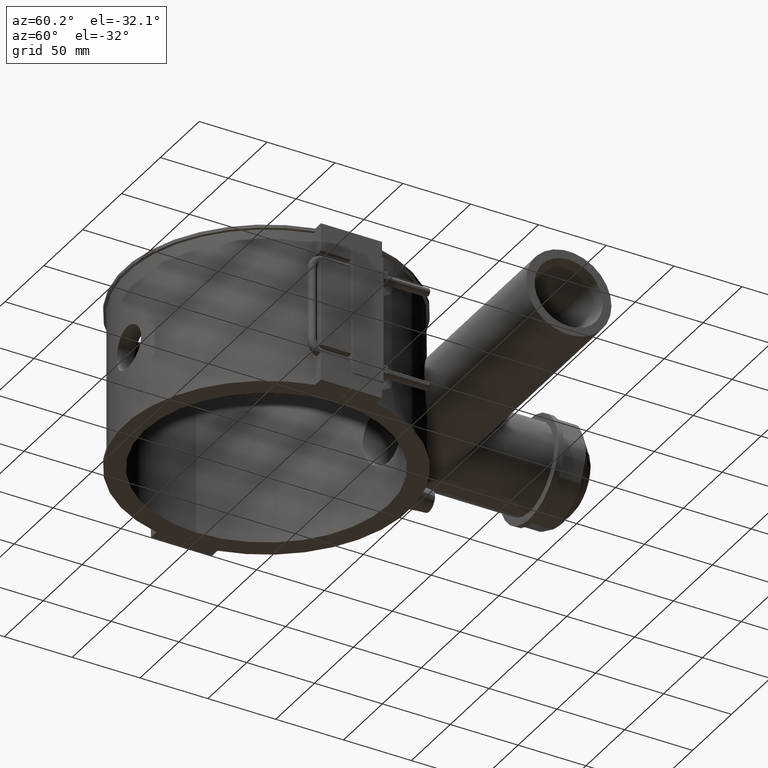
[diagram: clean part render]
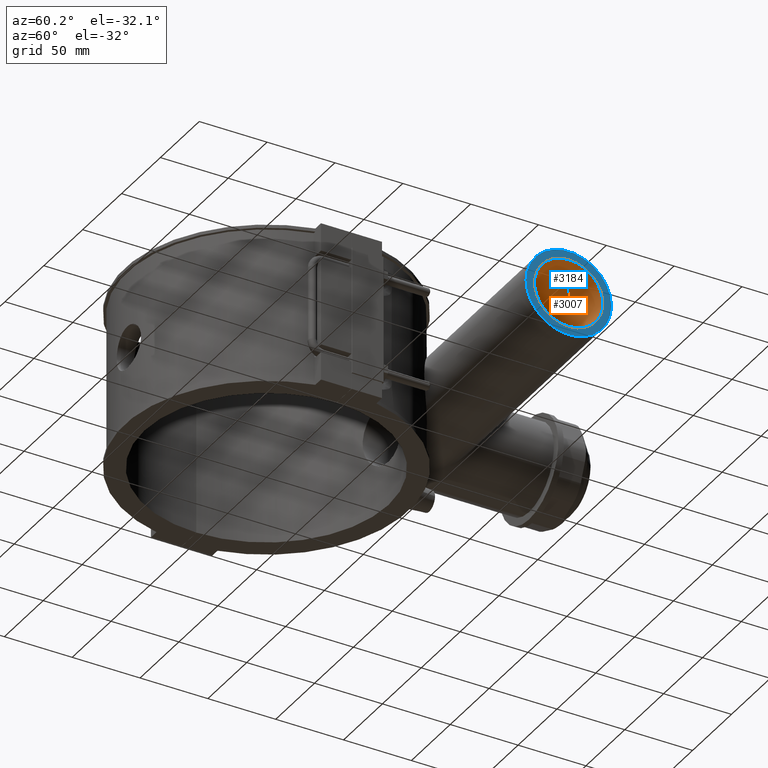
[diagram: same view with the hole feature highlighted: cylindrical wall and planar end face, labeled with their STEP entity ids]
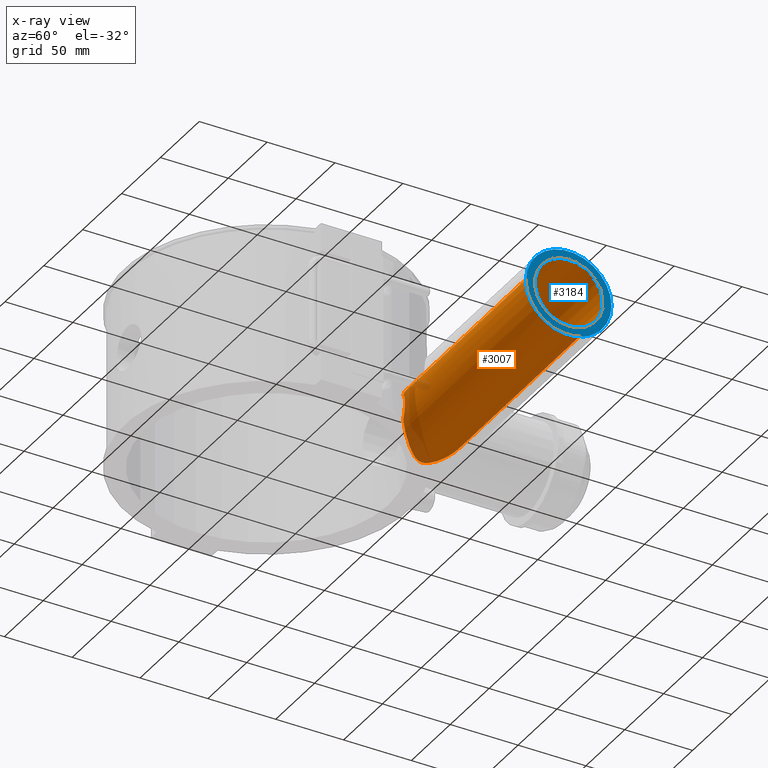
[diagram: x-ray of the same camera — body ghosted, the hole faces saturated]
A machine part, auxiliary view. The highlighted faces form one hole feature of diameter 50.4 mm: the cylindrical wall (entity #3007, orange) and its adjacent planar end face (entity #3184, blue) — they share a circular edge in the B-rep.
The next image is the same camera in x-ray (body ghosted, the hole faces saturated) — the bore reads through the body.
Wall:
#708=FACE_BOUND('',#1044,.T.);
#758=CIRCLE('',#3191,25.2);
#862=FACE_OUTER_BOUND('',#1043,.T.);
#1043=EDGE_LOOP('',(#2062,#2063));
#1044=EDGE_LOOP('',(#2064));
#1274=B_SPLINE_CURVE_WITH_KNOTS('',3,(#4312,#4313,#4314,#4315,#4316,#4317,
#4318,#4319,#4320,#4321,#4322,#4323,#4324,#4325,#4326,#4327,#4328,#4329,
#4330,#4331,#4332,#4333,#4334,#4335,#4336,#4337,#4338,#4339,#4340,#4341,
#4342,#4343,#4344,#4345,#4346,#4347,#4348,#4349,#4350,#4351,#4352,#4353,
#4354,#4355,#4356,#4357,#4358,#4359,#4360,#4361,#4362,#4363,#4364,#4365,
#4366,#4367,#4368,#4369,#4370,#4371,#4372,#4373,#4374,#4375,#4376,#4377,
#4378,#4379,#4380,#4381,#4382),.UNSPECIFIED.,.F.,.F.,(4,2,2,2,2,2,2,2,2,
2,2,2,2,2,2,2,2,2,2,2,2,2,2,2,2,2,3,2,2,2,2,2,2,2,4),(5.34224310128821,
5.44303072689351,5.95850318548576,6.47397564407801,7.06152463791301,7.649073631748,
8.236622625583,8.5303971225005,8.824171619418,9.1179461163355,9.411720613253,
9.99926960708799,10.586818600923,11.174367594758,11.6898400533502,12.2053125119425,
12.7207849705347,13.236257429127,13.7517298877193,14.2672023463115,14.7826748049038,
15.298147263496,15.885696257331,16.473245251166,17.060794245001,17.3545687419185,
17.648343238836,17.9421177357535,18.235892232671,18.823441226506,19.410990220341,
19.998539214176,20.5140116727683,21.0294841313605,21.1302717569658),
 .UNSPECIFIED.);
#1275=B_SPLINE_CURVE_WITH_KNOTS('',3,(#4383,#4384,#4385,#4386,#4387,#4388,
#4389,#4390,#4391,#4392,#4393,#4394,#4395,#4396),.UNSPECIFIED.,.F.,.F.,
(4,2,2,2,2,2,4),(3.50576226862094,3.85768770114975,4.22259452400955,4.58750134686935,
4.95240816972915,5.31731499258895,5.66924042511776),.UNSPECIFIED.);
#1329=VERTEX_POINT('',#4310);
#1330=VERTEX_POINT('',#4311);
#1331=VERTEX_POINT('',#4397);
#1623=EDGE_CURVE('',#1329,#1330,#1274,.T.);
#1624=EDGE_CURVE('',#1329,#1330,#1275,.T.);
#1625=EDGE_CURVE('',#1331,#1331,#758,.T.);
#2062=ORIENTED_EDGE('',*,*,#1623,.T.);
#2063=ORIENTED_EDGE('',*,*,#1624,.F.);
#2064=ORIENTED_EDGE('',*,*,#1625,.T.);
#2960=CYLINDRICAL_SURFACE('',#3190,25.2);
#3007=ADVANCED_FACE('',(#862,#708),#2960,.F.);
#3190=AXIS2_PLACEMENT_3D('',#4309,#3471,#3472);
#3191=AXIS2_PLACEMENT_3D('',#4398,#3473,#3474);
#3471=DIRECTION('center_axis',(1.,0.,0.));
#3472=DIRECTION('ref_axis',(0.,1.,0.));
#3473=DIRECTION('center_axis',(1.,0.,0.));
#3474=DIRECTION('ref_axis',(0.,0.,-1.));
#4309=CARTESIAN_POINT('Origin',(98.5,110.,0.));
#4310=CARTESIAN_POINT('',(24.8432944405324,86.5032411031001,9.10726750133984));
#4311=CARTESIAN_POINT('',(24.8432944405323,86.5032411031001,-9.10726750133987));
#4312=CARTESIAN_POINT('Ctrl Pts',(24.8432944405333,86.5032411031003,9.1072675013401));
#4313=CARTESIAN_POINT('Ctrl Pts',(24.7301088292559,86.6229130748703,9.41602130339801));
#4314=CARTESIAN_POINT('Ctrl Pts',(24.6116695464456,86.7482359630691,9.72128580400996));
#4315=CARTESIAN_POINT('Ctrl Pts',(23.8573563509172,87.5471532975309,11.5642854536495));
#4316=CARTESIAN_POINT('Ctrl Pts',(23.0944076516088,88.3582053195659,13.0076883636228));
#4317=CARTESIAN_POINT('Ctrl Pts',(21.4110720469216,90.1644355167131,15.6242636621071));
#4318=CARTESIAN_POINT('Ctrl Pts',(20.4909400727046,91.1594980794726,16.7976798512746));
#4319=CARTESIAN_POINT('Ctrl Pts',(18.4998747213541,93.3451401330086,18.9833219048106));
#4320=CARTESIAN_POINT('Ctrl Pts',(17.3479813825215,94.6272767510981,20.0347976944913));
#4321=CARTESIAN_POINT('Ctrl Pts',(14.9924524336935,97.3452856310784,21.8534195101001));
#4322=CARTESIAN_POINT('Ctrl Pts',(13.7875797948489,98.7797323401865,22.6210933244879));
#4323=CARTESIAN_POINT('Ctrl Pts',(11.5109422054728,101.735688747228,23.8602059753298));
#4324=CARTESIAN_POINT('Ctrl Pts',(10.4421810056752,103.238532256103,24.3296486012527));
#4325=CARTESIAN_POINT('Ctrl Pts',(9.16108469727634,105.609578009364,24.827730850256));
#4326=CARTESIAN_POINT('Ctrl Pts',(8.7901386682555,106.418436128618,24.9589332259209));
#4327=CARTESIAN_POINT('Ctrl Pts',(8.24366285866406,108.124092436878,25.1447193908453));
#4328=CARTESIAN_POINT('Ctrl Pts',(8.0679365391653,109.020751676942,25.2));
#4329=CARTESIAN_POINT('Ctrl Pts',(8.06793653916529,110.979248323058,25.2));
#4330=CARTESIAN_POINT('Ctrl Pts',(8.24366285866405,111.875907563122,25.1447193908453));
#4331=CARTESIAN_POINT('Ctrl Pts',(8.79013866825549,113.581563871382,24.9589332259209));
#4332=CARTESIAN_POINT('Ctrl Pts',(9.16108469727632,114.390421990636,24.827730850256));
#4333=CARTESIAN_POINT('Ctrl Pts',(10.4421810056752,116.761467743897,24.3296486012528));
#4334=CARTESIAN_POINT('Ctrl Pts',(11.5109422054728,118.264311252772,23.8602059753298));
#4335=CARTESIAN_POINT('Ctrl Pts',(13.7875797948489,121.220267659813,22.621093324488));
#4336=CARTESIAN_POINT('Ctrl Pts',(14.9924524336935,122.654714368922,21.8534195101001));
#4337=CARTESIAN_POINT('Ctrl Pts',(17.3479813825214,125.372723248902,20.0347976944913));
#4338=CARTESIAN_POINT('Ctrl Pts',(18.499874721354,126.654859866991,18.9833219048107));
#4339=CARTESIAN_POINT('Ctrl Pts',(20.4909400727046,128.840501920527,16.7976798512746));
#4340=CARTESIAN_POINT('Ctrl Pts',(21.4110720469216,129.835564483287,15.6242636621071));
#4341=CARTESIAN_POINT('Ctrl Pts',(23.0944076516088,131.641794680434,13.0076883636228));
#4342=CARTESIAN_POINT('Ctrl Pts',(23.8573563509172,132.452846702469,11.5642854536496));
#4343=CARTESIAN_POINT('Ctrl Pts',(25.1192510847094,133.789359947987,8.48112110487815));
#4344=CARTESIAN_POINT('Ctrl Pts',(25.619361597918,134.316087497329,6.83745143271416));
#4345=CARTESIAN_POINT('Ctrl Pts',(26.2898838592351,135.021559020629,3.4560725541925));
#4346=CARTESIAN_POINT('Ctrl Pts',(26.46,135.2,1.71824152864085));
#4347=CARTESIAN_POINT('Ctrl Pts',(26.46,135.2,-1.71824152864084));
#4348=CARTESIAN_POINT('Ctrl Pts',(26.2898838592351,135.021559020629,-3.45607255419249));
#4349=CARTESIAN_POINT('Ctrl Pts',(25.619361597918,134.316087497329,-6.83745143271415));
#4350=CARTESIAN_POINT('Ctrl Pts',(25.1192510847094,133.789359947987,-8.48112110487815));
#4351=CARTESIAN_POINT('Ctrl Pts',(23.8573563509172,132.452846702469,-11.5642854536495));
#4352=CARTESIAN_POINT('Ctrl Pts',(23.0944076516088,131.641794680434,-13.0076883636228));
#4353=CARTESIAN_POINT('Ctrl Pts',(21.4110720469215,129.835564483287,-15.6242636621071));
#4354=CARTESIAN_POINT('Ctrl Pts',(20.4909400727046,128.840501920527,-16.7976798512746));
#4355=CARTESIAN_POINT('Ctrl Pts',(18.499874721354,126.654859866991,-18.9833219048107));
#4356=CARTESIAN_POINT('Ctrl Pts',(17.3479813825214,125.372723248902,-20.0347976944913));
#4357=CARTESIAN_POINT('Ctrl Pts',(14.9924524336934,122.654714368922,-21.8534195101001));
#4358=CARTESIAN_POINT('Ctrl Pts',(13.7875797948488,121.220267659813,-22.6210933244879));
#4359=CARTESIAN_POINT('Ctrl Pts',(11.5109422054727,118.264311252772,-23.8602059753298));
#4360=CARTESIAN_POINT('Ctrl Pts',(10.4421810056751,116.761467743897,-24.3296486012527));
#4361=CARTESIAN_POINT('Ctrl Pts',(9.16108469727617,114.390421990636,-24.827730850256));
#4362=CARTESIAN_POINT('Ctrl Pts',(8.79013866825534,113.581563871382,-24.9589332259209));
#4363=CARTESIAN_POINT('Ctrl Pts',(8.24366285866387,111.875907563122,-25.1447193908453));
#4364=CARTESIAN_POINT('Ctrl Pts',(8.0679365391651,110.979248323058,-25.2));
#4365=CARTESIAN_POINT('Ctrl Pts',(8.0679365391651,110.,-25.2));
#4366=CARTESIAN_POINT('Ctrl Pts',(8.0679365391651,109.020751676942,-25.2));
#4367=CARTESIAN_POINT('Ctrl Pts',(8.24366285866387,108.124092436878,-25.1447193908453));
#4368=CARTESIAN_POINT('Ctrl Pts',(8.79013866825534,106.418436128618,-24.9589332259209));
#4369=CARTESIAN_POINT('Ctrl Pts',(9.16108469727616,105.609578009364,-24.8277308502561));
#4370=CARTESIAN_POINT('Ctrl Pts',(10.442181005675,103.238532256103,-24.3296486012528));
#4371=CARTESIAN_POINT('Ctrl Pts',(11.5109422054727,101.735688747228,-23.8602059753298));
#4372=CARTESIAN_POINT('Ctrl Pts',(13.7875797948488,98.7797323401866,-22.621093324488));
#4373=CARTESIAN_POINT('Ctrl Pts',(14.9924524336934,97.3452856310785,-21.8534195101001));
#4374=CARTESIAN_POINT('Ctrl Pts',(17.3479813825214,94.6272767510982,-20.0347976944913));
#4375=CARTESIAN_POINT('Ctrl Pts',(18.499874721354,93.3451401330086,-18.9833219048106));
#4376=CARTESIAN_POINT('Ctrl Pts',(20.4909400727046,91.1594980794726,-16.7976798512746));
#4377=CARTESIAN_POINT('Ctrl Pts',(21.4110720469215,90.1644355167131,-15.6242636621071));
#4378=CARTESIAN_POINT('Ctrl Pts',(23.0944076516088,88.3582053195659,-13.0076883636228));
#4379=CARTESIAN_POINT('Ctrl Pts',(23.8573563509172,87.5471532975309,-11.5642854536495));
#4380=CARTESIAN_POINT('Ctrl Pts',(24.6116695464456,86.7482359630692,-9.72128580400998));
#4381=CARTESIAN_POINT('Ctrl Pts',(24.7301088292558,86.6229130748703,-9.41602130339802));
#4382=CARTESIAN_POINT('Ctrl Pts',(24.8432944405333,86.5032411031003,-9.10726750134012));
#4383=CARTESIAN_POINT('Ctrl Pts',(24.8432944405314,86.5032411031001,9.10726750133951));
#4384=CARTESIAN_POINT('Ctrl Pts',(25.746830809931,86.2437500161017,8.43778024775909));
#4385=CARTESIAN_POINT('Ctrl Pts',(26.5910075379776,85.9857783388589,7.69130948150287));
#4386=CARTESIAN_POINT('Ctrl Pts',(28.13829670856,85.4922206048074,5.93867587244603));
#4387=CARTESIAN_POINT('Ctrl Pts',(28.8753995438249,85.2437420227434,4.85696574673231));
#4388=CARTESIAN_POINT('Ctrl Pts',(29.8832249571203,84.8956832929728,2.49715501335572));
#4389=CARTESIAN_POINT('Ctrl Pts',(30.1489634979381,84.8,1.21635607619933));
#4390=CARTESIAN_POINT('Ctrl Pts',(30.1489634979381,84.8,-1.21635607619933));
#4391=CARTESIAN_POINT('Ctrl Pts',(29.8832249571203,84.8956832929728,-2.49715501335573));
#4392=CARTESIAN_POINT('Ctrl Pts',(28.8753995438248,85.2437420227434,-4.85696574673231));
#4393=CARTESIAN_POINT('Ctrl Pts',(28.13829670856,85.4922206048074,-5.93867587244603));
#4394=CARTESIAN_POINT('Ctrl Pts',(26.5910075379776,85.9857783388589,-7.69130948150288));
#4395=CARTESIAN_POINT('Ctrl Pts',(25.746830809931,86.2437500161017,-8.4377802477591));
#4396=CARTESIAN_POINT('Ctrl Pts',(24.8432944405314,86.5032411031001,-9.10726750133953));
#4397=CARTESIAN_POINT('',(197.,110.,-25.2));
#4398=CARTESIAN_POINT('Origin',(197.,110.,0.));
End face:
#706=PLANE('',#3463);
#755=FACE_BOUND('',#1268,.T.);
#758=CIRCLE('',#3191,25.2);
#860=CIRCLE('',#3464,31.5);
#1039=FACE_OUTER_BOUND('',#1267,.T.);
#1267=EDGE_LOOP('',(#2945));
#1268=EDGE_LOOP('',(#2946));
#1331=VERTEX_POINT('',#4397);
#1621=VERTEX_POINT('',#6478);
#1625=EDGE_CURVE('',#1331,#1331,#758,.T.);
#2060=EDGE_CURVE('',#1621,#1621,#860,.T.);
#2945=ORIENTED_EDGE('',*,*,#2060,.T.);
#2946=ORIENTED_EDGE('',*,*,#1625,.F.);
#3184=ADVANCED_FACE('',(#1039,#755),#706,.T.);
#3191=AXIS2_PLACEMENT_3D('',#4398,#3473,#3474);
#3463=AXIS2_PLACEMENT_3D('',#6477,#4296,#4297);
#3464=AXIS2_PLACEMENT_3D('',#6479,#4298,#4299);
#3473=DIRECTION('center_axis',(1.,0.,0.));
#3474=DIRECTION('ref_axis',(0.,0.,-1.));
#4296=DIRECTION('center_axis',(1.,0.,0.));
#4297=DIRECTION('ref_axis',(0.,0.,-1.));
#4298=DIRECTION('center_axis',(1.,0.,0.));
#4299=DIRECTION('ref_axis',(0.,0.,-1.));
#4397=CARTESIAN_POINT('',(197.,110.,-25.2));
#4398=CARTESIAN_POINT('Origin',(197.,110.,0.));
#6477=CARTESIAN_POINT('Origin',(197.,135.2,0.));
#6478=CARTESIAN_POINT('',(197.,141.5,0.));
#6479=CARTESIAN_POINT('Origin',(197.,110.,0.));